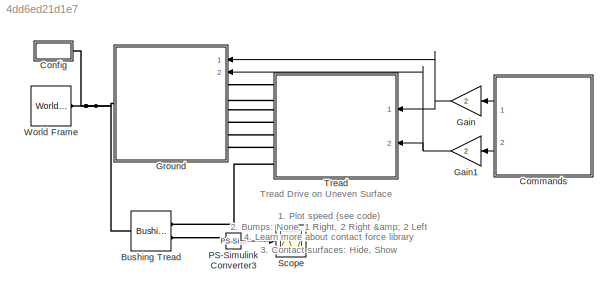
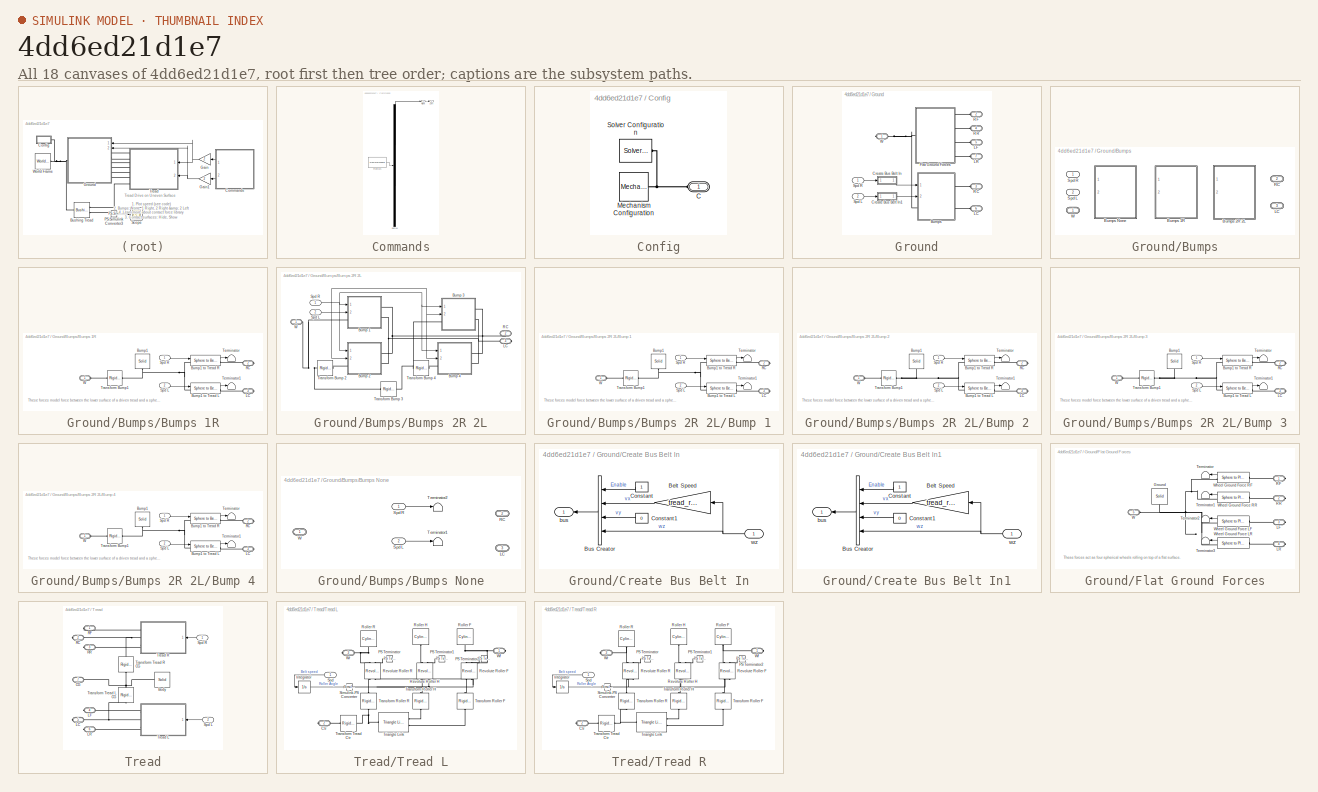
[diagram: thumbnail index - all 18 canvases of the model, root first then tree order]
MODEL slx_4dd6ed21d1e7
KIND model
CONFIG AbsTol = 1e-5
CONFIG EnableMultiTasking = on
CONFIG FixedStep = auto
CONFIG MaxStep = 0.01
CONFIG MinStep = auto
CONFIG PreLoadFcn = sm_tread_drive_param
CONFIG RelTol = 1e-4
CONFIG SampleTimeConstraint = Unconstrained
CONFIG Solver = ode15s
CONFIG SolverName = ode15s
CONFIG StartFcn = tic;
CONFIG StartTime = 0.0
CONFIG StopFcn = Elapsed_Sim_Time = toc;\ndisp(['Elapsed Sim Time = ' num2str(Elapsed_Sim_Time)]);\n
CONFIG StopTime = 50
BLOCK [Reference] Bushing Tread  REF=sm_lib/Joints/Bushing Joint
  Ports = [0, 0, 0, 0, 0, 1, 2]
  SourceBlock = sm_lib/Joints/Bushing Joint
  SourceProductBaseCode = MS
  SourceProductName = Simscape Multibody
  SourceType = Bushing Joint
BLOCK [SubSystem] Commands
  ClipboardFcn = sigbuilder_block('clipboard');
  CloseFcn = sigbuilder_block('close');
  ContinueFcn = sigbuilder_block('continue');
  CopyFcn = sigbuilder_block('copy');
  DeleteFcn = sigbuilder_block('delete');
  LoadFcn = sigbuilder_block('load');
  MaskHideContents = on
  ModelCloseFcn = sigbuilder_block('modelClose');
  NameChangeFcn = sigbuilder_block('namechange');
  OpenFcn = sigbuilder_block('open',[18 313.2 550.8 265.2 ]);
  PauseFcn = sigbuilder_block('pause');
  Ports = [0, 2]
  PreSaveFcn = sigbuilder_block('preSave');
  RequestExecContextInheritance = off
  StartFcn = sigbuilder_block('start');
  StopFcn = sigbuilder_block('stop');
  Tag = STV Subsys
BLOCK [Demux] Commands/Demux
  Outputs = 2
  Ports = [1, 2]
  Tag = STV Demux
BLOCK [FromWorkspace] Commands/FromWs
  SampleTime = 0
  Tag = STV FromWs
  VariableName = tuvar
  ZeroCross = on
BLOCK [Outport] Commands/Left
  IconDisplay = Port number
  Port = 2
  Tag = STV Outport
BLOCK [Outport] Commands/Right
  IconDisplay = Port number
  Tag = STV Outport
BLOCK [SubSystem] Config
  Ports = [0, 0, 0, 0, 0, 1]
  RequestExecContextInheritance = off
BLOCK [PMIOPort] Config/C
  Side = Left
BLOCK [Reference] Config/Mechanism Configuration  REF=sm_lib/Utilities/Mechanism
Configuration
  Ports = [0, 0, 0, 0, 0, 0, 1]
  SourceBlock = sm_lib/Utilities/Mechanism\nConfiguration
  SourceProductBaseCode = MS
  SourceProductName = Simscape Multibody
  SourceType = Mechanism\nConfiguration
BLOCK [Reference] Config/Solver Configuration  REF=nesl_utility/Solver
Configuration
  Ports = [0, 0, 0, 0, 0, 0, 1]
  SourceBlock = nesl_utility/Solver\nConfiguration
  SourceProductBaseCode = SS
  SourceProductName = Simscape
  SourceType = Solver\nConfiguration
BLOCK [Gain] Gain
  Gain = 2
  OutDataTypeStr = Inherit: Inherit via internal rule
  ParamDataTypeStr = Inherit: Inherit via internal rule
  SaturateOnIntegerOverflow = off
BLOCK [Gain] Gain1
  Gain = 2
  OutDataTypeStr = Inherit: Inherit via internal rule
  ParamDataTypeStr = Inherit: Inherit via internal rule
  SaturateOnIntegerOverflow = off
BLOCK [SubSystem] Ground
  AttributesFormatString = %<popup_bumps>
  Ports = [2, 0, 0, 0, 0, 6, 1]
  RequestExecContextInheritance = off
BLOCK [SubSystem] Ground/Bumps
  LabelModeActiveChoice = Bumps_1R
  Ports = [2, 0, 0, 0, 0, 1, 2]
  RequestExecContextInheritance = off
  Variant = on
  VariantControl = Variant1
  VariantControlMode = Label
BLOCK [PMIOPort] Ground/Bumps/ LC
  Port = 3
  Side = Right
BLOCK [PMIOPort] Ground/Bumps/ RC
  Port = 2
  Side = Right
BLOCK [PMIOPort] Ground/Bumps/ W
  Side = Left
BLOCK [SubSystem] Ground/Bumps/Bumps 1R
  Ports = [2, 0, 0, 0, 0, 1, 2]
  RequestExecContextInheritance = off
  VariantControl = Bumps_1R
BLOCK [Reference] Ground/Bumps/Bumps 1R/Bump1  REF=sm_lib/Body Elements/Solid
  Ports = [0, 0, 0, 0, 0, 0, 1]
  SourceBlock = sm_lib/Body Elements/Solid
  SourceProductBaseCode = MS
  SourceProductName = Simscape Multibody
  SourceType = Solid
BLOCK [Reference] Ground/Bumps/Bumps 1R/Bump1 to Tread L  REF=Contact_Forces_Lib/3D/Composite
Forces/Sphere to Belt Force
  Ports = [1, 1, 0, 0, 0, 1, 1]
  SourceBlock = Contact_Forces_Lib/3D/Composite\nForces/Sphere to Belt Force
  SourceProductName = Simscape Multibody Contact Forces Library
  SourceType = Sphere to Belt Force
BLOCK [Reference] Ground/Bumps/Bumps 1R/Bump1 to Tread R  REF=Contact_Forces_Lib/3D/Composite
Forces/Sphere to Belt Force
  Ports = [1, 1, 0, 0, 0, 1, 1]
  SourceBlock = Contact_Forces_Lib/3D/Composite\nForces/Sphere to Belt Force
  SourceProductName = Simscape Multibody Contact Forces Library
  SourceType = Sphere to Belt Force
BLOCK [PMIOPort] Ground/Bumps/Bumps 1R/LC
  Port = 3
  Side = Right
BLOCK [PMIOPort] Ground/Bumps/Bumps 1R/RC
  Port = 2
  Side = Right
BLOCK [Inport] Ground/Bumps/Bumps 1R/Spd L
  IconDisplay = Port number
  Port = 2
BLOCK [Inport] Ground/Bumps/Bumps 1R/Spd R
  IconDisplay = Port number
BLOCK [Terminator] Ground/Bumps/Bumps 1R/Terminator
BLOCK [Terminator] Ground/Bumps/Bumps 1R/Terminator1
BLOCK [Reference] Ground/Bumps/Bumps 1R/Transform Bump1  REF=sm_lib/Frames and
Transforms/Rigid
Transform
  Ports = [0, 0, 0, 0, 0, 1, 1]
  SourceBlock = sm_lib/Frames and\nTransforms/Rigid\nTransform
  SourceProductBaseCode = MS
  SourceProductName = Simscape Multibody
  SourceType = Rigid\nTransform
BLOCK [PMIOPort] Ground/Bumps/Bumps 1R/W
  Side = Left
BLOCK [SubSystem] Ground/Bumps/Bumps 2R 2L
  Ports = [2, 0, 0, 0, 0, 1, 2]
  RequestExecContextInheritance = off
  VariantControl = Bumps_2R_2L
BLOCK [SubSystem] Ground/Bumps/Bumps 2R 2L/Bump 1
  Ports = [2, 0, 0, 0, 0, 1, 2]
  RequestExecContextInheritance = off
BLOCK [Reference] Ground/Bumps/Bumps 2R 2L/Bump 1/Bump1  REF=sm_lib/Body Elements/Solid
  Ports = [0, 0, 0, 0, 0, 0, 1]
  SourceBlock = sm_lib/Body Elements/Solid
  SourceProductBaseCode = MS
  SourceProductName = Simscape Multibody
  SourceType = Solid
BLOCK [Reference] Ground/Bumps/Bumps 2R 2L/Bump 1/Bump1 to Tread L  REF=Contact_Forces_Lib/3D/Composite
Forces/Sphere to Belt Force
  Ports = [1, 1, 0, 0, 0, 1, 1]
  SourceBlock = Contact_Forces_Lib/3D/Composite\nForces/Sphere to Belt Force
  SourceProductName = Simscape Multibody Contact Forces Library
  SourceType = Sphere to Belt Force
BLOCK [Reference] Ground/Bumps/Bumps 2R 2L/Bump 1/Bump1 to Tread R  REF=Contact_Forces_Lib/3D/Composite
Forces/Sphere to Belt Force
  Ports = [1, 1, 0, 0, 0, 1, 1]
  SourceBlock = Contact_Forces_Lib/3D/Composite\nForces/Sphere to Belt Force
  SourceProductName = Simscape Multibody Contact Forces Library
  SourceType = Sphere to Belt Force
BLOCK [PMIOPort] Ground/Bumps/Bumps 2R 2L/Bump 1/LC
  Port = 3
  Side = Right
BLOCK [PMIOPort] Ground/Bumps/Bumps 2R 2L/Bump 1/RC
  Port = 2
  Side = Right
BLOCK [Inport] Ground/Bumps/Bumps 2R 2L/Bump 1/Spd L
  IconDisplay = Port number
  Port = 2
BLOCK [Inport] Ground/Bumps/Bumps 2R 2L/Bump 1/Spd R
  IconDisplay = Port number
BLOCK [Terminator] Ground/Bumps/Bumps 2R 2L/Bump 1/Terminator
BLOCK [Terminator] Ground/Bumps/Bumps 2R 2L/Bump 1/Terminator1
BLOCK [Reference] Ground/Bumps/Bumps 2R 2L/Bump 1/Transform Bump1  REF=sm_lib/Frames and
Transforms/Rigid
Transform
  Ports = [0, 0, 0, 0, 0, 1, 1]
  SourceBlock = sm_lib/Frames and\nTransforms/Rigid\nTransform
  SourceProductBaseCode = MS
  SourceProductName = Simscape Multibody
  SourceType = Rigid\nTransform
BLOCK [PMIOPort] Ground/Bumps/Bumps 2R 2L/Bump 1/W
  Side = Left
BLOCK [SubSystem] Ground/Bumps/Bumps 2R 2L/Bump 2
  Ports = [2, 0, 0, 0, 0, 1, 2]
  RequestExecContextInheritance = off
BLOCK [Reference] Ground/Bumps/Bumps 2R 2L/Bump 2/Bump1  REF=sm_lib/Body Elements/Solid
  Ports = [0, 0, 0, 0, 0, 0, 1]
  SourceBlock = sm_lib/Body Elements/Solid
  SourceProductBaseCode = MS
  SourceProductName = Simscape Multibody
  SourceType = Solid
BLOCK [Reference] Ground/Bumps/Bumps 2R 2L/Bump 2/Bump1 to Tread L  REF=Contact_Forces_Lib/3D/Composite
Forces/Sphere to Belt Force
  Ports = [1, 1, 0, 0, 0, 1, 1]
  SourceBlock = Contact_Forces_Lib/3D/Composite\nForces/Sphere to Belt Force
  SourceProductName = Simscape Multibody Contact Forces Library
  SourceType = Sphere to Belt Force
BLOCK [Reference] Ground/Bumps/Bumps 2R 2L/Bump 2/Bump1 to Tread R  REF=Contact_Forces_Lib/3D/Composite
Forces/Sphere to Belt Force
  Ports = [1, 1, 0, 0, 0, 1, 1]
  SourceBlock = Contact_Forces_Lib/3D/Composite\nForces/Sphere to Belt Force
  SourceProductName = Simscape Multibody Contact Forces Library
  SourceType = Sphere to Belt Force
BLOCK [PMIOPort] Ground/Bumps/Bumps 2R 2L/Bump 2/LC
  Port = 3
  Side = Right
BLOCK [PMIOPort] Ground/Bumps/Bumps 2R 2L/Bump 2/RC
  Port = 2
  Side = Right
BLOCK [Inport] Ground/Bumps/Bumps 2R 2L/Bump 2/Spd L
  IconDisplay = Port number
  Port = 2
BLOCK [Inport] Ground/Bumps/Bumps 2R 2L/Bump 2/Spd R
  IconDisplay = Port number
BLOCK [Terminator] Ground/Bumps/Bumps 2R 2L/Bump 2/Terminator
BLOCK [Terminator] Ground/Bumps/Bumps 2R 2L/Bump 2/Terminator1
BLOCK [Reference] Ground/Bumps/Bumps 2R 2L/Bump 2/Transform Bump1  REF=sm_lib/Frames and
Transforms/Rigid
Transform
  Ports = [0, 0, 0, 0, 0, 1, 1]
  SourceBlock = sm_lib/Frames and\nTransforms/Rigid\nTransform
  SourceProductBaseCode = MS
  SourceProductName = Simscape Multibody
  SourceType = Rigid\nTransform
BLOCK [PMIOPort] Ground/Bumps/Bumps 2R 2L/Bump 2/W
  Side = Left
BLOCK [SubSystem] Ground/Bumps/Bumps 2R 2L/Bump 3
  Ports = [2, 0, 0, 0, 0, 1, 2]
  RequestExecContextInheritance = off
BLOCK [Reference] Ground/Bumps/Bumps 2R 2L/Bump 3/Bump1  REF=sm_lib/Body Elements/Solid
  Ports = [0, 0, 0, 0, 0, 0, 1]
  SourceBlock = sm_lib/Body Elements/Solid
  SourceProductBaseCode = MS
  SourceProductName = Simscape Multibody
  SourceType = Solid
BLOCK [Reference] Ground/Bumps/Bumps 2R 2L/Bump 3/Bump1 to Tread L  REF=Contact_Forces_Lib/3D/Composite
Forces/Sphere to Belt Force
  Ports = [1, 1, 0, 0, 0, 1, 1]
  SourceBlock = Contact_Forces_Lib/3D/Composite\nForces/Sphere to Belt Force
  SourceProductName = Simscape Multibody Contact Forces Library
  SourceType = Sphere to Belt Force
BLOCK [Reference] Ground/Bumps/Bumps 2R 2L/Bump 3/Bump1 to Tread R  REF=Contact_Forces_Lib/3D/Composite
Forces/Sphere to Belt Force
  Ports = [1, 1, 0, 0, 0, 1, 1]
  SourceBlock = Contact_Forces_Lib/3D/Composite\nForces/Sphere to Belt Force
  SourceProductName = Simscape Multibody Contact Forces Library
  SourceType = Sphere to Belt Force
BLOCK [PMIOPort] Ground/Bumps/Bumps 2R 2L/Bump 3/LC
  Port = 3
  Side = Right
BLOCK [PMIOPort] Ground/Bumps/Bumps 2R 2L/Bump 3/RC
  Port = 2
  Side = Right
BLOCK [Inport] Ground/Bumps/Bumps 2R 2L/Bump 3/Spd L
  IconDisplay = Port number
  Port = 2
BLOCK [Inport] Ground/Bumps/Bumps 2R 2L/Bump 3/Spd R
  IconDisplay = Port number
BLOCK [Terminator] Ground/Bumps/Bumps 2R 2L/Bump 3/Terminator
BLOCK [Terminator] Ground/Bumps/Bumps 2R 2L/Bump 3/Terminator1
BLOCK [Reference] Ground/Bumps/Bumps 2R 2L/Bump 3/Transform Bump1  REF=sm_lib/Frames and
Transforms/Rigid
Transform
  Ports = [0, 0, 0, 0, 0, 1, 1]
  SourceBlock = sm_lib/Frames and\nTransforms/Rigid\nTransform
  SourceProductBaseCode = MS
  SourceProductName = Simscape Multibody
  SourceType = Rigid\nTransform
BLOCK [PMIOPort] Ground/Bumps/Bumps 2R 2L/Bump 3/W
  Side = Left
BLOCK [SubSystem] Ground/Bumps/Bumps 2R 2L/Bump 4
  Ports = [2, 0, 0, 0, 0, 1, 2]
  RequestExecContextInheritance = off
BLOCK [Reference] Ground/Bumps/Bumps 2R 2L/Bump 4/Bump1  REF=sm_lib/Body Elements/Solid
  Ports = [0, 0, 0, 0, 0, 0, 1]
  SourceBlock = sm_lib/Body Elements/Solid
  SourceProductBaseCode = MS
  SourceProductName = Simscape Multibody
  SourceType = Solid
BLOCK [Reference] Ground/Bumps/Bumps 2R 2L/Bump 4/Bump1 to Tread L  REF=Contact_Forces_Lib/3D/Composite
Forces/Sphere to Belt Force
  Ports = [1, 1, 0, 0, 0, 1, 1]
  SourceBlock = Contact_Forces_Lib/3D/Composite\nForces/Sphere to Belt Force
  SourceProductName = Simscape Multibody Contact Forces Library
  SourceType = Sphere to Belt Force
BLOCK [Reference] Ground/Bumps/Bumps 2R 2L/Bump 4/Bump1 to Tread R  REF=Contact_Forces_Lib/3D/Composite
Forces/Sphere to Belt Force
  Ports = [1, 1, 0, 0, 0, 1, 1]
  SourceBlock = Contact_Forces_Lib/3D/Composite\nForces/Sphere to Belt Force
  SourceProductName = Simscape Multibody Contact Forces Library
  SourceType = Sphere to Belt Force
BLOCK [PMIOPort] Ground/Bumps/Bumps 2R 2L/Bump 4/LC
  Port = 3
  Side = Right
BLOCK [PMIOPort] Ground/Bumps/Bumps 2R 2L/Bump 4/RC
  Port = 2
  Side = Right
BLOCK [Inport] Ground/Bumps/Bumps 2R 2L/Bump 4/Spd L
  IconDisplay = Port number
  Port = 2
BLOCK [Inport] Ground/Bumps/Bumps 2R 2L/Bump 4/Spd R
  IconDisplay = Port number
BLOCK [Terminator] Ground/Bumps/Bumps 2R 2L/Bump 4/Terminator
BLOCK [Terminator] Ground/Bumps/Bumps 2R 2L/Bump 4/Terminator1
BLOCK [Reference] Ground/Bumps/Bumps 2R 2L/Bump 4/Transform Bump1  REF=sm_lib/Frames and
Transforms/Rigid
Transform
  Ports = [0, 0, 0, 0, 0, 1, 1]
  SourceBlock = sm_lib/Frames and\nTransforms/Rigid\nTransform
  SourceProductBaseCode = MS
  SourceProductName = Simscape Multibody
  SourceType = Rigid\nTransform
BLOCK [PMIOPort] Ground/Bumps/Bumps 2R 2L/Bump 4/W
  Side = Left
BLOCK [PMIOPort] Ground/Bumps/Bumps 2R 2L/LC
  Port = 3
  Side = Right
BLOCK [PMIOPort] Ground/Bumps/Bumps 2R 2L/RC
  Port = 2
  Side = Right
BLOCK [Inport] Ground/Bumps/Bumps 2R 2L/Spd L
  IconDisplay = Port number
  Port = 2
BLOCK [Inport] Ground/Bumps/Bumps 2R 2L/Spd R
  IconDisplay = Port number
BLOCK [Reference] Ground/Bumps/Bumps 2R 2L/Transform Bump 2  REF=sm_lib/Frames and
Transforms/Rigid
Transform
  Ports = [0, 0, 0, 0, 0, 1, 1]
  SourceBlock = sm_lib/Frames and\nTransforms/Rigid\nTransform
  SourceProductBaseCode = MS
  SourceProductName = Simscape Multibody
  SourceType = Rigid\nTransform
BLOCK [Reference] Ground/Bumps/Bumps 2R 2L/Transform Bump 3  REF=sm_lib/Frames and
Transforms/Rigid
Transform
  Ports = [0, 0, 0, 0, 0, 1, 1]
  SourceBlock = sm_lib/Frames and\nTransforms/Rigid\nTransform
  SourceProductBaseCode = MS
  SourceProductName = Simscape Multibody
  SourceType = Rigid\nTransform
BLOCK [Reference] Ground/Bumps/Bumps 2R 2L/Transform Bump 4  REF=sm_lib/Frames and
Transforms/Rigid
Transform
  Ports = [0, 0, 0, 0, 0, 1, 1]
  SourceBlock = sm_lib/Frames and\nTransforms/Rigid\nTransform
  SourceProductBaseCode = MS
  SourceProductName = Simscape Multibody
  SourceType = Rigid\nTransform
BLOCK [PMIOPort] Ground/Bumps/Bumps 2R 2L/W
  Side = Left
BLOCK [SubSystem] Ground/Bumps/Bumps None
  Ports = [2, 0, 0, 0, 0, 1, 2]
  RequestExecContextInheritance = off
  VariantControl = Bumps_None
BLOCK [PMIOPort] Ground/Bumps/Bumps None/LC
  Port = 3
  Side = Right
BLOCK [PMIOPort] Ground/Bumps/Bumps None/RC
  Port = 2
  Side = Right
BLOCK [Inport] Ground/Bumps/Bumps None/Spd L
  IconDisplay = Port number
  Port = 2
BLOCK [Inport] Ground/Bumps/Bumps None/Spd R
  IconDisplay = Port number
BLOCK [Terminator] Ground/Bumps/Bumps None/Terminator1
BLOCK [Terminator] Ground/Bumps/Bumps None/Terminator2
BLOCK [PMIOPort] Ground/Bumps/Bumps None/W
  Side = Left
BLOCK [Inport] Ground/Bumps/Spd L 
  IconDisplay = Port number
  Port = 2
BLOCK [Inport] Ground/Bumps/Spd R 
  IconDisplay = Port number
BLOCK [SubSystem] Ground/Create Bus Belt In
  Ports = [1, 1]
  RequestExecContextInheritance = off
BLOCK [Gain] Ground/Create Bus Belt In/Belt Speed
  Gain = tread_rad
  OutDataTypeStr = Inherit: Inherit via internal rule
  ParamDataTypeStr = Inherit: Inherit via internal rule
  SaturateOnIntegerOverflow = off
BLOCK [BusCreator] Ground/Create Bus Belt In/Bus Creator
  DisplayOption = bar
  InheritFromInputs = on
  Inputs = 4
  Ports = [4, 1]
BLOCK [Constant] Ground/Create Bus Belt In/Constant
BLOCK [Constant] Ground/Create Bus Belt In/Constant1
  Value = 0
BLOCK [Outport] Ground/Create Bus Belt In/bus
  IconDisplay = Port number
BLOCK [Inport] Ground/Create Bus Belt In/wz
  IconDisplay = Port number
BLOCK [SubSystem] Ground/Create Bus Belt In1
  Ports = [1, 1]
  RequestExecContextInheritance = off
BLOCK [Gain] Ground/Create Bus Belt In1/Belt Speed
  Gain = tread_rad
  OutDataTypeStr = Inherit: Inherit via internal rule
  ParamDataTypeStr = Inherit: Inherit via internal rule
  SaturateOnIntegerOverflow = off
BLOCK [BusCreator] Ground/Create Bus Belt In1/Bus Creator
  DisplayOption = bar
  InheritFromInputs = on
  Inputs = 4
  Ports = [4, 1]
BLOCK [Constant] Ground/Create Bus Belt In1/Constant
BLOCK [Constant] Ground/Create Bus Belt In1/Constant1
  Value = 0
BLOCK [Outport] Ground/Create Bus Belt In1/bus
  IconDisplay = Port number
BLOCK [Inport] Ground/Create Bus Belt In1/wz
  IconDisplay = Port number
BLOCK [SubSystem] Ground/Flat Ground Forces
  Ports = [0, 0, 0, 0, 0, 1, 4]
  RequestExecContextInheritance = off
BLOCK [Reference] Ground/Flat Ground Forces/Ground  REF=sm_lib/Body Elements/Solid
  Ports = [0, 0, 0, 0, 0, 0, 1]
  SourceBlock = sm_lib/Body Elements/Solid
  SourceProductBaseCode = MS
  SourceProductName = Simscape Multibody
  SourceType = Solid
BLOCK [PMIOPort] Ground/Flat Ground Forces/LF
  Port = 3
  Side = Right
BLOCK [PMIOPort] Ground/Flat Ground Forces/LR
  Port = 4
  Side = Right
BLOCK [PMIOPort] Ground/Flat Ground Forces/RF
  Side = Right
BLOCK [PMIOPort] Ground/Flat Ground Forces/RR
  Port = 2
  Side = Right
BLOCK [Terminator] Ground/Flat Ground Forces/Terminator
BLOCK [Terminator] Ground/Flat Ground Forces/Terminator1
BLOCK [Terminator] Ground/Flat Ground Forces/Terminator2
BLOCK [Terminator] Ground/Flat Ground Forces/Terminator3
BLOCK [PMIOPort] Ground/Flat Ground Forces/W
  Port = 5
  Side = Left
BLOCK [Reference] Ground/Flat Ground Forces/Wheel Ground Force LF  REF=Contact_Forces_Lib/3D/Sphere to Plane Force
  Ports = [0, 1, 0, 0, 0, 1, 1]
  SourceBlock = Contact_Forces_Lib/3D/Sphere to Plane Force
  SourceProductName = Simscape Multibody Contact Forces Library
  SourceType = Sphere to Plane Force
BLOCK [Reference] Ground/Flat Ground Forces/Wheel Ground Force LR  REF=Contact_Forces_Lib/3D/Sphere to Plane Force
  Ports = [0, 1, 0, 0, 0, 1, 1]
  SourceBlock = Contact_Forces_Lib/3D/Sphere to Plane Force
  SourceProductName = Simscape Multibody Contact Forces Library
  SourceType = Sphere to Plane Force
BLOCK [Reference] Ground/Flat Ground Forces/Wheel Ground Force RF  REF=Contact_Forces_Lib/3D/Sphere to Plane Force
  Ports = [0, 1, 0, 0, 0, 1, 1]
  SourceBlock = Contact_Forces_Lib/3D/Sphere to Plane Force
  SourceProductName = Simscape Multibody Contact Forces Library
  SourceType = Sphere to Plane Force
BLOCK [Reference] Ground/Flat Ground Forces/Wheel Ground Force RR  REF=Contact_Forces_Lib/3D/Sphere to Plane Force
  Ports = [0, 1, 0, 0, 0, 1, 1]
  SourceBlock = Contact_Forces_Lib/3D/Sphere to Plane Force
  SourceProductName = Simscape Multibody Contact Forces Library
  SourceType = Sphere to Plane Force
BLOCK [PMIOPort] Ground/LC
  Port = 6
  Side = Left
BLOCK [PMIOPort] Ground/LF
  Port = 5
  Side = Left
BLOCK [PMIOPort] Ground/LR
  Port = 7
  Side = Left
BLOCK [PMIOPort] Ground/RC
  Port = 3
  Side = Left
BLOCK [PMIOPort] Ground/RF
  Port = 2
  Side = Left
BLOCK [PMIOPort] Ground/RR
  Port = 4
  Side = Left
BLOCK [Inport] Ground/Spd L
  IconDisplay = Port number
  Port = 2
BLOCK [Inport] Ground/Spd R
  IconDisplay = Port number
BLOCK [PMIOPort] Ground/W
  Side = Right
BLOCK [Reference] PS-Simulink Converter3  REF=nesl_utility/PS-Simulink
Converter
  Ports = [0, 1, 0, 0, 0, 1]
  SourceBlock = nesl_utility/PS-Simulink\nConverter
  SourceProductBaseCode = SS
  SourceProductName = Simscape
  SourceType = PS-Simulink\nConverter
BLOCK [Scope] Scope
  Floating = off
  NumInputPorts = 1
  Ports = [1]
  ScopeSpecificationString = Simulink.scopes.TimeScopeBlockCfg('CurrentConfiguration', extmgr.ConfigurationSet(extmgr.Configuration('Core','General UI',true),extmgr.Configuration('Core','Source UI',true),extmgr.Configuration('Sources','WiredSimulink',true,'DataLoggingVariableName','ScopeData5'),extmgr.Configuration('Visuals','Time Domain',true,'SerializedDisplays',{struct('MinYLimReal','-0.78809','MaxYLimReal','0.83753','YLab...<+1392ch>
BLOCK [SubSystem] Tread
  Ports = [2, 0, 0, 0, 0, 0, 7]
  RequestExecContextInheritance = off
BLOCK [Reference] Tread/Body  REF=sm_lib/Body Elements/Solid
  Ports = [0, 0, 0, 0, 0, 1]
  SourceBlock = sm_lib/Body Elements/Solid
  SourceProductBaseCode = MS
  SourceProductName = Simscape Multibody
  SourceType = Solid
BLOCK [PMIOPort] Tread/CG
  Port = 7
  Side = Right
BLOCK [PMIOPort] Tread/LC
  Port = 5
  Side = Right
BLOCK [PMIOPort] Tread/LF
  Port = 4
  Side = Right
BLOCK [PMIOPort] Tread/LR
  Port = 6
  Side = Right
BLOCK [PMIOPort] Tread/RC
  Port = 2
  Side = Right
BLOCK [PMIOPort] Tread/RF
  Side = Right
BLOCK [PMIOPort] Tread/RR
  Port = 3
  Side = Right
BLOCK [Inport] Tread/Spd L
  IconDisplay = Port number
  Port = 2
BLOCK [Inport] Tread/Spd R
  IconDisplay = Port number
BLOCK [Reference] Tread/Transform Tread L CG  REF=sm_lib/Frames and
Transforms/Rigid
Transform
  Ports = [0, 0, 0, 0, 0, 1, 1]
  SourceBlock = sm_lib/Frames and\nTransforms/Rigid\nTransform
  SourceProductBaseCode = MS
  SourceProductName = Simscape Multibody
  SourceType = Rigid\nTransform
BLOCK [Reference] Tread/Transform Tread R CG  REF=sm_lib/Frames and
Transforms/Rigid
Transform
  Ports = [0, 0, 0, 0, 0, 1, 1]
  SourceBlock = sm_lib/Frames and\nTransforms/Rigid\nTransform
  SourceProductBaseCode = MS
  SourceProductName = Simscape Multibody
  SourceType = Rigid\nTransform
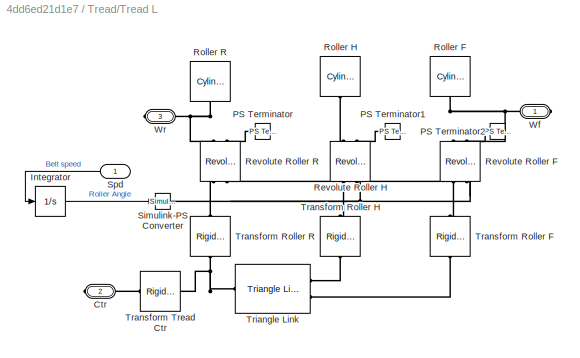
BLOCK [SubSystem] Tread/Tread L
  Ports = [1, 0, 0, 0, 0, 0, 3]
  RequestExecContextInheritance = off
BLOCK [PMIOPort] Tread/Tread L/Ctr
  Port = 2
  Side = Right
BLOCK [Integrator] Tread/Tread L/Integrator
  Ports = [1, 1]
BLOCK [Reference] Tread/Tread L/PS Terminator  REF=fl_lib/Physical Signals/Sinks/PS Terminator
  Ports = [0, 0, 0, 0, 0, 1]
  SourceBlock = fl_lib/Physical Signals/Sinks/PS Terminator
  SourceProductBaseCode = SS
  SourceProductName = Simscape
  SourceType = PS Terminator
BLOCK [Reference] Tread/Tread L/PS Terminator1  REF=fl_lib/Physical Signals/Sinks/PS Terminator
  Ports = [0, 0, 0, 0, 0, 1]
  SourceBlock = fl_lib/Physical Signals/Sinks/PS Terminator
  SourceProductBaseCode = SS
  SourceProductName = Simscape
  SourceType = PS Terminator
BLOCK [Reference] Tread/Tread L/PS Terminator2  REF=fl_lib/Physical Signals/Sinks/PS Terminator
  Ports = [0, 0, 0, 0, 0, 1]
  SourceBlock = fl_lib/Physical Signals/Sinks/PS Terminator
  SourceProductBaseCode = SS
  SourceProductName = Simscape
  SourceType = PS Terminator
BLOCK [Reference] Tread/Tread L/Revolute Roller F  REF=sm_lib/Joints/Revolute Joint
  Ports = [0, 0, 0, 0, 0, 2, 2]
  SourceBlock = sm_lib/Joints/Revolute Joint
  SourceProductBaseCode = MS
  SourceProductName = Simscape Multibody
  SourceType = Revolute Joint
BLOCK [Reference] Tread/Tread L/Revolute Roller H  REF=sm_lib/Joints/Revolute Joint
  Ports = [0, 0, 0, 0, 0, 2, 2]
  SourceBlock = sm_lib/Joints/Revolute Joint
  SourceProductBaseCode = MS
  SourceProductName = Simscape Multibody
  SourceType = Revolute Joint
BLOCK [Reference] Tread/Tread L/Revolute Roller R  REF=sm_lib/Joints/Revolute Joint
  Ports = [0, 0, 0, 0, 0, 2, 2]
  SourceBlock = sm_lib/Joints/Revolute Joint
  SourceProductBaseCode = MS
  SourceProductName = Simscape Multibody
  SourceType = Revolute Joint
BLOCK [Reference] Tread/Tread L/Roller F  REF=Parts_Lib/Cylinder
  Ports = [0, 0, 0, 0, 0, 1]
  SourceBlock = Parts_Lib/Cylinder
  SourceType = Solid Cylinder with Markings
  Tag = CustomStyle
BLOCK [Reference] Tread/Tread L/Roller H  REF=Parts_Lib/Cylinder
  Ports = [0, 0, 0, 0, 0, 1]
  SourceBlock = Parts_Lib/Cylinder
  SourceType = Solid Cylinder with Markings
  Tag = CustomStyle
BLOCK [Reference] Tread/Tread L/Roller R  REF=Parts_Lib/Cylinder
  Ports = [0, 0, 0, 0, 0, 1]
  SourceBlock = Parts_Lib/Cylinder
  SourceType = Solid Cylinder with Markings
  Tag = CustomStyle
BLOCK [Reference] Tread/Tread L/Simulink-PS Converter  REF=nesl_utility/Simulink-PS
Converter
  Ports = [1, 0, 0, 0, 0, 0, 1]
  SourceBlock = nesl_utility/Simulink-PS\nConverter
  SourceProductBaseCode = SS
  SourceProductName = Simscape
  SourceType = Simulink-PS\nConverter
BLOCK [Inport] Tread/Tread L/Spd
  IconDisplay = Port number
BLOCK [Reference] Tread/Tread L/Transform Roller F  REF=sm_lib/Frames and
Transforms/Rigid
Transform
  Ports = [0, 0, 0, 0, 0, 1, 1]
  SourceBlock = sm_lib/Frames and\nTransforms/Rigid\nTransform
  SourceProductBaseCode = MS
  SourceProductName = Simscape Multibody
  SourceType = Rigid\nTransform
BLOCK [Reference] Tread/Tread L/Transform Roller H  REF=sm_lib/Frames and
Transforms/Rigid
Transform
  Ports = [0, 0, 0, 0, 0, 1, 1]
  SourceBlock = sm_lib/Frames and\nTransforms/Rigid\nTransform
  SourceProductBaseCode = MS
  SourceProductName = Simscape Multibody
  SourceType = Rigid\nTransform
BLOCK [Reference] Tread/Tread L/Transform Roller R  REF=sm_lib/Frames and
Transforms/Rigid
Transform
  Ports = [0, 0, 0, 0, 0, 1, 1]
  SourceBlock = sm_lib/Frames and\nTransforms/Rigid\nTransform
  SourceProductBaseCode = MS
  SourceProductName = Simscape Multibody
  SourceType = Rigid\nTransform
BLOCK [Reference] Tread/Tread L/Transform Tread Ctr  REF=sm_lib/Frames and
Transforms/Rigid
Transform
  Ports = [0, 0, 0, 0, 0, 1, 1]
  SourceBlock = sm_lib/Frames and\nTransforms/Rigid\nTransform
  SourceProductBaseCode = MS
  SourceProductName = Simscape Multibody
  SourceType = Rigid\nTransform
BLOCK [Reference] Tread/Tread L/Triangle Link  REF=Parts_Lib/Triangle Link
  Ports = [0, 0, 0, 0, 0, 1, 2]
  SourceBlock = Parts_Lib/Triangle Link
  SourceType = Triangular Link with Rounded Corners
BLOCK [PMIOPort] Tread/Tread L/Wf
  Side = Right
BLOCK [PMIOPort] Tread/Tread L/Wr
  Port = 3
  Side = Right
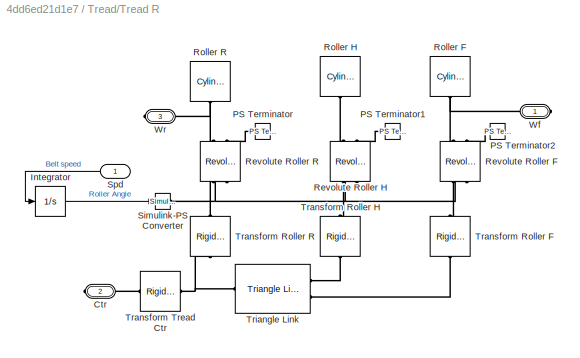
BLOCK [SubSystem] Tread/Tread R
  Ports = [1, 0, 0, 0, 0, 0, 3]
  RequestExecContextInheritance = off
BLOCK [PMIOPort] Tread/Tread R/Ctr
  Port = 2
  Side = Right
BLOCK [Integrator] Tread/Tread R/Integrator
  Ports = [1, 1]
BLOCK [Reference] Tread/Tread R/PS Terminator  REF=fl_lib/Physical Signals/Sinks/PS Terminator
  Ports = [0, 0, 0, 0, 0, 1]
  SourceBlock = fl_lib/Physical Signals/Sinks/PS Terminator
  SourceProductBaseCode = SS
  SourceProductName = Simscape
  SourceType = PS Terminator
BLOCK [Reference] Tread/Tread R/PS Terminator1  REF=fl_lib/Physical Signals/Sinks/PS Terminator
  Ports = [0, 0, 0, 0, 0, 1]
  SourceBlock = fl_lib/Physical Signals/Sinks/PS Terminator
  SourceProductBaseCode = SS
  SourceProductName = Simscape
  SourceType = PS Terminator
BLOCK [Reference] Tread/Tread R/PS Terminator2  REF=fl_lib/Physical Signals/Sinks/PS Terminator
  Ports = [0, 0, 0, 0, 0, 1]
  SourceBlock = fl_lib/Physical Signals/Sinks/PS Terminator
  SourceProductBaseCode = SS
  SourceProductName = Simscape
  SourceType = PS Terminator
BLOCK [Reference] Tread/Tread R/Revolute Roller F  REF=sm_lib/Joints/Revolute Joint
  Ports = [0, 0, 0, 0, 0, 2, 2]
  SourceBlock = sm_lib/Joints/Revolute Joint
  SourceProductBaseCode = MS
  SourceProductName = Simscape Multibody
  SourceType = Revolute Joint
BLOCK [Reference] Tread/Tread R/Revolute Roller H  REF=sm_lib/Joints/Revolute Joint
  Ports = [0, 0, 0, 0, 0, 2, 2]
  SourceBlock = sm_lib/Joints/Revolute Joint
  SourceProductBaseCode = MS
  SourceProductName = Simscape Multibody
  SourceType = Revolute Joint
BLOCK [Reference] Tread/Tread R/Revolute Roller R  REF=sm_lib/Joints/Revolute Joint
  Ports = [0, 0, 0, 0, 0, 2, 2]
  SourceBlock = sm_lib/Joints/Revolute Joint
  SourceProductBaseCode = MS
  SourceProductName = Simscape Multibody
  SourceType = Revolute Joint
BLOCK [Reference] Tread/Tread R/Roller F  REF=Parts_Lib/Cylinder
  Ports = [0, 0, 0, 0, 0, 1]
  SourceBlock = Parts_Lib/Cylinder
  SourceType = Solid Cylinder with Markings
  Tag = CustomStyle
BLOCK [Reference] Tread/Tread R/Roller H  REF=Parts_Lib/Cylinder
  Ports = [0, 0, 0, 0, 0, 1]
  SourceBlock = Parts_Lib/Cylinder
  SourceType = Solid Cylinder with Markings
  Tag = CustomStyle
BLOCK [Reference] Tread/Tread R/Roller R  REF=Parts_Lib/Cylinder
  Ports = [0, 0, 0, 0, 0, 1]
  SourceBlock = Parts_Lib/Cylinder
  SourceType = Solid Cylinder with Markings
  Tag = CustomStyle
BLOCK [Reference] Tread/Tread R/Simulink-PS Converter  REF=nesl_utility/Simulink-PS
Converter
  Ports = [1, 0, 0, 0, 0, 0, 1]
  SourceBlock = nesl_utility/Simulink-PS\nConverter
  SourceProductBaseCode = SS
  SourceProductName = Simscape
  SourceType = Simulink-PS\nConverter
BLOCK [Inport] Tread/Tread R/Spd
  IconDisplay = Port number
BLOCK [Reference] Tread/Tread R/Transform Roller F  REF=sm_lib/Frames and
Transforms/Rigid
Transform
  Ports = [0, 0, 0, 0, 0, 1, 1]
  SourceBlock = sm_lib/Frames and\nTransforms/Rigid\nTransform
  SourceProductBaseCode = MS
  SourceProductName = Simscape Multibody
  SourceType = Rigid\nTransform
BLOCK [Reference] Tread/Tread R/Transform Roller H  REF=sm_lib/Frames and
Transforms/Rigid
Transform
  Ports = [0, 0, 0, 0, 0, 1, 1]
  SourceBlock = sm_lib/Frames and\nTransforms/Rigid\nTransform
  SourceProductBaseCode = MS
  SourceProductName = Simscape Multibody
  SourceType = Rigid\nTransform
BLOCK [Reference] Tread/Tread R/Transform Roller R  REF=sm_lib/Frames and
Transforms/Rigid
Transform
  Ports = [0, 0, 0, 0, 0, 1, 1]
  SourceBlock = sm_lib/Frames and\nTransforms/Rigid\nTransform
  SourceProductBaseCode = MS
  SourceProductName = Simscape Multibody
  SourceType = Rigid\nTransform
BLOCK [Reference] Tread/Tread R/Transform Tread Ctr  REF=sm_lib/Frames and
Transforms/Rigid
Transform
  Ports = [0, 0, 0, 0, 0, 1, 1]
  SourceBlock = sm_lib/Frames and\nTransforms/Rigid\nTransform
  SourceProductBaseCode = MS
  SourceProductName = Simscape Multibody
  SourceType = Rigid\nTransform
BLOCK [Reference] Tread/Tread R/Triangle Link  REF=Parts_Lib/Triangle Link
  Ports = [0, 0, 0, 0, 0, 1, 2]
  SourceBlock = Parts_Lib/Triangle Link
  SourceType = Triangular Link with Rounded Corners
BLOCK [PMIOPort] Tread/Tread R/Wf
  Side = Right
BLOCK [PMIOPort] Tread/Tread R/Wr
  Port = 3
  Side = Right
BLOCK [Reference] World Frame  REF=sm_lib/Frames and
Transforms/World Frame
  Ports = [0, 0, 0, 0, 0, 0, 1]
  SourceBlock = sm_lib/Frames and\nTransforms/World Frame
  SourceProductBaseCode = MS
  SourceProductName = Simscape Multibody
  SourceType = World Frame
ANNOTATION (root): 1. Plot speed ( see code ) 2. Bumps: None , 1 Right , 2 Right & 2 Left 3. Contact surfaces: Hide , Show 4. Learn more about contact force library
ANNOTATION (root): Tread Drive on Uneven Surface
ANNOTATION Ground/Bumps/Bumps 1R: These forces model force between the lower surface of a driven tread and a spherical bump.
ANNOTATION Ground/Bumps/Bumps 2R 2L/Bump 1: These forces model force between the lower surface of a driven tread and a spherical bump.
ANNOTATION Ground/Bumps/Bumps 2R 2L/Bump 2: These forces model force between the lower surface of a driven tread and a spherical bump.
ANNOTATION Ground/Bumps/Bumps 2R 2L/Bump 3: These forces model force between the lower surface of a driven tread and a spherical bump.
ANNOTATION Ground/Bumps/Bumps 2R 2L/Bump 4: These forces model force between the lower surface of a driven tread and a spherical bump.
ANNOTATION Ground/Flat Ground Forces: These forces act as four spherical wheels rolling on top of a flat surface.
LINE Commands:1 -> Gain:1
LINE Commands:2 -> Gain1:1
NET Gain1:1 -> Ground:2, Tread:2
NET Gain:1 -> Ground:1, Tread:1
LINE Ground/Bumps/Bumps 1R/Bump1 to Tread L:1 -> Ground/Bumps/Bumps 1R/Terminator1:1
LINE Ground/Bumps/Bumps 1R/Bump1 to Tread R:1 -> Ground/Bumps/Bumps 1R/Terminator:1
LINE Ground/Bumps/Bumps 1R/Spd L:1 -> Ground/Bumps/Bumps 1R/Bump1 to Tread L:1
LINE Ground/Bumps/Bumps 1R/Spd R:1 -> Ground/Bumps/Bumps 1R/Bump1 to Tread R:1
LINE Ground/Bumps/Bumps 2R 2L/Bump 1/Bump1 to Tread L:1 -> Ground/Bumps/Bumps 2R 2L/Bump 1/Terminator1:1
LINE Ground/Bumps/Bumps 2R 2L/Bump 1/Bump1 to Tread R:1 -> Ground/Bumps/Bumps 2R 2L/Bump 1/Terminator:1
LINE Ground/Bumps/Bumps 2R 2L/Bump 1/Spd L:1 -> Ground/Bumps/Bumps 2R 2L/Bump 1/Bump1 to Tread L:1
LINE Ground/Bumps/Bumps 2R 2L/Bump 1/Spd R:1 -> Ground/Bumps/Bumps 2R 2L/Bump 1/Bump1 to Tread R:1
LINE Ground/Bumps/Bumps 2R 2L/Bump 2/Bump1 to Tread L:1 -> Ground/Bumps/Bumps 2R 2L/Bump 2/Terminator1:1
LINE Ground/Bumps/Bumps 2R 2L/Bump 2/Bump1 to Tread R:1 -> Ground/Bumps/Bumps 2R 2L/Bump 2/Terminator:1
LINE Ground/Bumps/Bumps 2R 2L/Bump 2/Spd L:1 -> Ground/Bumps/Bumps 2R 2L/Bump 2/Bump1 to Tread L:1
LINE Ground/Bumps/Bumps 2R 2L/Bump 2/Spd R:1 -> Ground/Bumps/Bumps 2R 2L/Bump 2/Bump1 to Tread R:1
LINE Ground/Bumps/Bumps 2R 2L/Bump 3/Bump1 to Tread L:1 -> Ground/Bumps/Bumps 2R 2L/Bump 3/Terminator1:1
LINE Ground/Bumps/Bumps 2R 2L/Bump 3/Bump1 to Tread R:1 -> Ground/Bumps/Bumps 2R 2L/Bump 3/Terminator:1
LINE Ground/Bumps/Bumps 2R 2L/Bump 3/Spd L:1 -> Ground/Bumps/Bumps 2R 2L/Bump 3/Bump1 to Tread L:1
LINE Ground/Bumps/Bumps 2R 2L/Bump 3/Spd R:1 -> Ground/Bumps/Bumps 2R 2L/Bump 3/Bump1 to Tread R:1
LINE Ground/Bumps/Bumps 2R 2L/Bump 4/Bump1 to Tread L:1 -> Ground/Bumps/Bumps 2R 2L/Bump 4/Terminator1:1
LINE Ground/Bumps/Bumps 2R 2L/Bump 4/Bump1 to Tread R:1 -> Ground/Bumps/Bumps 2R 2L/Bump 4/Terminator:1
LINE Ground/Bumps/Bumps 2R 2L/Bump 4/Spd L:1 -> Ground/Bumps/Bumps 2R 2L/Bump 4/Bump1 to Tread L:1
LINE Ground/Bumps/Bumps 2R 2L/Bump 4/Spd R:1 -> Ground/Bumps/Bumps 2R 2L/Bump 4/Bump1 to Tread R:1
NET Ground/Bumps/Bumps 2R 2L/Spd L:1 -> Ground/Bumps/Bumps 2R 2L/Bump 1:2, Ground/Bumps/Bumps 2R 2L/Bump 2:2, Ground/Bumps/Bumps 2R 2L/Bump 3:2, Ground/Bumps/Bumps 2R 2L/Bump 4:2
NET Ground/Bumps/Bumps 2R 2L/Spd R:1 -> Ground/Bumps/Bumps 2R 2L/Bump 1:1, Ground/Bumps/Bumps 2R 2L/Bump 2:1, Ground/Bumps/Bumps 2R 2L/Bump 3:1, Ground/Bumps/Bumps 2R 2L/Bump 4:1
LINE Ground/Bumps/Bumps None/Spd L:1 -> Ground/Bumps/Bumps None/Terminator1:1
LINE Ground/Bumps/Bumps None/Spd R:1 -> Ground/Bumps/Bumps None/Terminator2:1
LINE Ground/Create Bus Belt In/Belt Speed:1 -> Ground/Create Bus Belt In/Bus Creator:2
LINE Ground/Create Bus Belt In/Bus Creator:1 -> Ground/Create Bus Belt In/bus:1
LINE Ground/Create Bus Belt In/Constant1:1 -> Ground/Create Bus Belt In/Bus Creator:3
LINE Ground/Create Bus Belt In/Constant:1 -> Ground/Create Bus Belt In/Bus Creator:1
NET Ground/Create Bus Belt In/wz:1 -> Ground/Create Bus Belt In/Belt Speed:1, Ground/Create Bus Belt In/Bus Creator:4
LINE Ground/Create Bus Belt In1/Belt Speed:1 -> Ground/Create Bus Belt In1/Bus Creator:2
LINE Ground/Create Bus Belt In1/Bus Creator:1 -> Ground/Create Bus Belt In1/bus:1
LINE Ground/Create Bus Belt In1/Constant1:1 -> Ground/Create Bus Belt In1/Bus Creator:3
LINE Ground/Create Bus Belt In1/Constant:1 -> Ground/Create Bus Belt In1/Bus Creator:1
NET Ground/Create Bus Belt In1/wz:1 -> Ground/Create Bus Belt In1/Belt Speed:1, Ground/Create Bus Belt In1/Bus Creator:4
LINE Ground/Create Bus Belt In1:1 -> Ground/Bumps:2
LINE Ground/Create Bus Belt In:1 -> Ground/Bumps:1
LINE Ground/Flat Ground Forces/Wheel Ground Force LF:1 -> Ground/Flat Ground Forces/Terminator2:1
LINE Ground/Flat Ground Forces/Wheel Ground Force LR:1 -> Ground/Flat Ground Forces/Terminator3:1
LINE Ground/Flat Ground Forces/Wheel Ground Force RF:1 -> Ground/Flat Ground Forces/Terminator:1
LINE Ground/Flat Ground Forces/Wheel Ground Force RR:1 -> Ground/Flat Ground Forces/Terminator1:1
LINE Ground/Spd L:1 -> Ground/Create Bus Belt In1:1
LINE Ground/Spd R:1 -> Ground/Create Bus Belt In:1
LINE PS-Simulink Converter3:1 -> Scope:1
LINE Tread/Spd L:1 -> Tread/Tread L:1
LINE Tread/Spd R:1 -> Tread/Tread R:1
LINE Tread/Tread L/Integrator:1 -> Tread/Tread L/Simulink-PS Converter:1
LINE Tread/Tread L/Spd:1 -> Tread/Tread L/Integrator:1
LINE Tread/Tread R/Integrator:1 -> Tread/Tread R/Simulink-PS Converter:1
LINE Tread/Tread R/Spd:1 -> Tread/Tread R/Integrator:1
PNET net1: Bushing Tread:LConn1 -- Config:LConn1 -- Ground:RConn1 -- World Frame:RConn1
PLINE Bushing Tread:RConn1 -- Tread:RConn7
PLINE Bushing Tread:RConn2 -- PS-Simulink Converter3:LConn1
PNET net2: Config/C:RConn1 -- Config/Mechanism Configuration:RConn1 -- Config/Solver Configuration:RConn1
PNET net3: Ground/Bumps/Bumps 1R/Bump1 to Tread L:LConn1 -- Ground/Bumps/Bumps 1R/Bump1 to Tread R:LConn1 -- Ground/Bumps/Bumps 1R/Bump1:RConn1 -- Ground/Bumps/Bumps 1R/Transform Bump1:RConn1
PLINE Ground/Bumps/Bumps 1R/Bump1 to Tread L:RConn1 -- Ground/Bumps/Bumps 1R/LC:RConn1
PLINE Ground/Bumps/Bumps 1R/Bump1 to Tread R:RConn1 -- Ground/Bumps/Bumps 1R/RC:RConn1
PLINE Ground/Bumps/Bumps 1R/Transform Bump1:LConn1 -- Ground/Bumps/Bumps 1R/W:RConn1
PNET net4: Ground/Bumps/Bumps 2R 2L/Bump 1/Bump1 to Tread L:LConn1 -- Ground/Bumps/Bumps 2R 2L/Bump 1/Bump1 to Tread R:LConn1 -- Ground/Bumps/Bumps 2R 2L/Bump 1/Bump1:RConn1 -- Ground/Bumps/Bumps 2R 2L/Bump 1/Transform Bump1:RConn1
PLINE Ground/Bumps/Bumps 2R 2L/Bump 1/Bump1 to Tread L:RConn1 -- Ground/Bumps/Bumps 2R 2L/Bump 1/LC:RConn1
PLINE Ground/Bumps/Bumps 2R 2L/Bump 1/Bump1 to Tread R:RConn1 -- Ground/Bumps/Bumps 2R 2L/Bump 1/RC:RConn1
PLINE Ground/Bumps/Bumps 2R 2L/Bump 1/Transform Bump1:LConn1 -- Ground/Bumps/Bumps 2R 2L/Bump 1/W:RConn1
PNET net5: Ground/Bumps/Bumps 2R 2L/Bump 1:LConn1 -- Ground/Bumps/Bumps 2R 2L/Transform Bump 2:LConn1 -- Ground/Bumps/Bumps 2R 2L/Transform Bump 3:LConn1 -- Ground/Bumps/Bumps 2R 2L/W:RConn1
PNET net6: Ground/Bumps/Bumps 2R 2L/Bump 1:RConn1 -- Ground/Bumps/Bumps 2R 2L/Bump 2:RConn1 -- Ground/Bumps/Bumps 2R 2L/Bump 3:RConn1 -- Ground/Bumps/Bumps 2R 2L/Bump 4:RConn1 -- Ground/Bumps/Bumps 2R 2L/RC:RConn1
PNET net7: Ground/Bumps/Bumps 2R 2L/Bump 1:RConn2 -- Ground/Bumps/Bumps 2R 2L/Bump 2:RConn2 -- Ground/Bumps/Bumps 2R 2L/Bump 3:RConn2 -- Ground/Bumps/Bumps 2R 2L/Bump 4:RConn2 -- Ground/Bumps/Bumps 2R 2L/LC:RConn1
PNET net8: Ground/Bumps/Bumps 2R 2L/Bump 2/Bump1 to Tread L:LConn1 -- Ground/Bumps/Bumps 2R 2L/Bump 2/Bump1 to Tread R:LConn1 -- Ground/Bumps/Bumps 2R 2L/Bump 2/Bump1:RConn1 -- Ground/Bumps/Bumps 2R 2L/Bump 2/Transform Bump1:RConn1
PLINE Ground/Bumps/Bumps 2R 2L/Bump 2/Bump1 to Tread L:RConn1 -- Ground/Bumps/Bumps 2R 2L/Bump 2/LC:RConn1
PLINE Ground/Bumps/Bumps 2R 2L/Bump 2/Bump1 to Tread R:RConn1 -- Ground/Bumps/Bumps 2R 2L/Bump 2/RC:RConn1
PLINE Ground/Bumps/Bumps 2R 2L/Bump 2/Transform Bump1:LConn1 -- Ground/Bumps/Bumps 2R 2L/Bump 2/W:RConn1
PLINE Ground/Bumps/Bumps 2R 2L/Bump 2:LConn1 -- Ground/Bumps/Bumps 2R 2L/Transform Bump 2:RConn1
PNET net9: Ground/Bumps/Bumps 2R 2L/Bump 3/Bump1 to Tread L:LConn1 -- Ground/Bumps/Bumps 2R 2L/Bump 3/Bump1 to Tread R:LConn1 -- Ground/Bumps/Bumps 2R 2L/Bump 3/Bump1:RConn1 -- Ground/Bumps/Bumps 2R 2L/Bump 3/Transform Bump1:RConn1
PLINE Ground/Bumps/Bumps 2R 2L/Bump 3/Bump1 to Tread L:RConn1 -- Ground/Bumps/Bumps 2R 2L/Bump 3/LC:RConn1
PLINE Ground/Bumps/Bumps 2R 2L/Bump 3/Bump1 to Tread R:RConn1 -- Ground/Bumps/Bumps 2R 2L/Bump 3/RC:RConn1
PLINE Ground/Bumps/Bumps 2R 2L/Bump 3/Transform Bump1:LConn1 -- Ground/Bumps/Bumps 2R 2L/Bump 3/W:RConn1
PNET net10: Ground/Bumps/Bumps 2R 2L/Bump 3:LConn1 -- Ground/Bumps/Bumps 2R 2L/Transform Bump 3:RConn1 -- Ground/Bumps/Bumps 2R 2L/Transform Bump 4:LConn1
PNET net11: Ground/Bumps/Bumps 2R 2L/Bump 4/Bump1 to Tread L:LConn1 -- Ground/Bumps/Bumps 2R 2L/Bump 4/Bump1 to Tread R:LConn1 -- Ground/Bumps/Bumps 2R 2L/Bump 4/Bump1:RConn1 -- Ground/Bumps/Bumps 2R 2L/Bump 4/Transform Bump1:RConn1
PLINE Ground/Bumps/Bumps 2R 2L/Bump 4/Bump1 to Tread L:RConn1 -- Ground/Bumps/Bumps 2R 2L/Bump 4/LC:RConn1
PLINE Ground/Bumps/Bumps 2R 2L/Bump 4/Bump1 to Tread R:RConn1 -- Ground/Bumps/Bumps 2R 2L/Bump 4/RC:RConn1
PLINE Ground/Bumps/Bumps 2R 2L/Bump 4/Transform Bump1:LConn1 -- Ground/Bumps/Bumps 2R 2L/Bump 4/W:RConn1
PLINE Ground/Bumps/Bumps 2R 2L/Bump 4:LConn1 -- Ground/Bumps/Bumps 2R 2L/Transform Bump 4:RConn1
PNET net12: Ground/Bumps:LConn1 -- Ground/Flat Ground Forces:LConn1 -- Ground/W:RConn1
PLINE Ground/Bumps:RConn1 -- Ground/RC:RConn1
PLINE Ground/Bumps:RConn2 -- Ground/LC:RConn1
PNET net13: Ground/Flat Ground Forces/Ground:RConn1 -- Ground/Flat Ground Forces/W:RConn1 -- Ground/Flat Ground Forces/Wheel Ground Force LF:RConn1 -- Ground/Flat Ground Forces/Wheel Ground Force LR:RConn1 -- Ground/Flat Ground Forces/Wheel Ground Force RF:RConn1 -- Ground/Flat Ground Forces/Wheel Ground Force RR:RConn1
PLINE Ground/Flat Ground Forces/LF:RConn1 -- Ground/Flat Ground Forces/Wheel Ground Force LF:LConn1
PLINE Ground/Flat Ground Forces/LR:RConn1 -- Ground/Flat Ground Forces/Wheel Ground Force LR:LConn1
PLINE Ground/Flat Ground Forces/RF:RConn1 -- Ground/Flat Ground Forces/Wheel Ground Force RF:LConn1
PLINE Ground/Flat Ground Forces/RR:RConn1 -- Ground/Flat Ground Forces/Wheel Ground Force RR:LConn1
PLINE Ground/Flat Ground Forces:RConn1 -- Ground/RF:RConn1
PLINE Ground/Flat Ground Forces:RConn2 -- Ground/RR:RConn1
PLINE Ground/Flat Ground Forces:RConn3 -- Ground/LF:RConn1
PLINE Ground/Flat Ground Forces:RConn4 -- Ground/LR:RConn1
PLINE Ground:LConn1 -- Tread:RConn1
PLINE Ground:LConn2 -- Tread:RConn2
PLINE Ground:LConn3 -- Tread:RConn3
PLINE Ground:LConn4 -- Tread:RConn4
PLINE Ground:LConn5 -- Tread:RConn5
PLINE Ground:LConn6 -- Tread:RConn6
PNET net14: Tread/Body:LConn1 -- Tread/CG:RConn1 -- Tread/Transform Tread L CG:LConn1 -- Tread/Transform Tread R CG:RConn1
PNET net15: Tread/LC:RConn1 -- Tread/Transform Tread L CG:RConn1 -- Tread/Tread L:RConn2
PLINE Tread/LF:RConn1 -- Tread/Tread L:RConn1
PLINE Tread/LR:RConn1 -- Tread/Tread L:RConn3
PNET net16: Tread/RC:RConn1 -- Tread/Transform Tread R CG:LConn1 -- Tread/Tread R:RConn2
PLINE Tread/RF:RConn1 -- Tread/Tread R:RConn1
PLINE Tread/RR:RConn1 -- Tread/Tread R:RConn3
PLINE Tread/Tread L/Ctr:RConn1 -- Tread/Tread L/Transform Tread Ctr:RConn1
PLINE Tread/Tread L/PS Terminator1:LConn1 -- Tread/Tread L/Revolute Roller H:RConn2
PLINE Tread/Tread L/PS Terminator2:LConn1 -- Tread/Tread L/Revolute Roller F:RConn2
PLINE Tread/Tread L/PS Terminator:LConn1 -- Tread/Tread L/Revolute Roller R:RConn2
PLINE Tread/Tread L/Revolute Roller F:LConn1 -- Tread/Tread L/Transform Roller F:RConn1
PNET net17: Tread/Tread L/Revolute Roller F:LConn2 -- Tread/Tread L/Revolute Roller H:LConn2 -- Tread/Tread L/Revolute Roller R:LConn2 -- Tread/Tread L/Simulink-PS Converter:RConn1
PNET net18: Tread/Tread L/Revolute Roller F:RConn1 -- Tread/Tread L/Roller F:LConn1 -- Tread/Tread L/Wf:RConn1
PLINE Tread/Tread L/Revolute Roller H:LConn1 -- Tread/Tread L/Transform Roller H:RConn1
PLINE Tread/Tread L/Revolute Roller H:RConn1 -- Tread/Tread L/Roller H:LConn1
PLINE Tread/Tread L/Revolute Roller R:LConn1 -- Tread/Tread L/Transform Roller R:RConn1
PNET net19: Tread/Tread L/Revolute Roller R:RConn1 -- Tread/Tread L/Roller R:LConn1 -- Tread/Tread L/Wr:RConn1
PLINE Tread/Tread L/Transform Roller F:LConn1 -- Tread/Tread L/Triangle Link:RConn2
PLINE Tread/Tread L/Transform Roller H:LConn1 -- Tread/Tread L/Triangle Link:RConn1
PNET net20: Tread/Tread L/Transform Roller R:LConn1 -- Tread/Tread L/Transform Tread Ctr:LConn1 -- Tread/Tread L/Triangle Link:LConn1
PLINE Tread/Tread R/Ctr:RConn1 -- Tread/Tread R/Transform Tread Ctr:RConn1
PLINE Tread/Tread R/PS Terminator1:LConn1 -- Tread/Tread R/Revolute Roller H:RConn2
PLINE Tread/Tread R/PS Terminator2:LConn1 -- Tread/Tread R/Revolute Roller F:RConn2
PLINE Tread/Tread R/PS Terminator:LConn1 -- Tread/Tread R/Revolute Roller R:RConn2
PLINE Tread/Tread R/Revolute Roller F:LConn1 -- Tread/Tread R/Transform Roller F:RConn1
PNET net21: Tread/Tread R/Revolute Roller F:LConn2 -- Tread/Tread R/Revolute Roller H:LConn2 -- Tread/Tread R/Revolute Roller R:LConn2 -- Tread/Tread R/Simulink-PS Converter:RConn1
PNET net22: Tread/Tread R/Revolute Roller F:RConn1 -- Tread/Tread R/Roller F:LConn1 -- Tread/Tread R/Wf:RConn1
PLINE Tread/Tread R/Revolute Roller H:LConn1 -- Tread/Tread R/Transform Roller H:RConn1
PLINE Tread/Tread R/Revolute Roller H:RConn1 -- Tread/Tread R/Roller H:LConn1
PLINE Tread/Tread R/Revolute Roller R:LConn1 -- Tread/Tread R/Transform Roller R:RConn1
PNET net23: Tread/Tread R/Revolute Roller R:RConn1 -- Tread/Tread R/Roller R:LConn1 -- Tread/Tread R/Wr:RConn1
PLINE Tread/Tread R/Transform Roller F:LConn1 -- Tread/Tread R/Triangle Link:RConn2
PLINE Tread/Tread R/Transform Roller H:LConn1 -- Tread/Tread R/Triangle Link:RConn1
PNET net24: Tread/Tread R/Transform Roller R:LConn1 -- Tread/Tread R/Transform Tread Ctr:LConn1 -- Tread/Tread R/Triangle Link:LConn1
note: NET lines group one-source signal fan-out (src -> all destinations, sorted); 1:1 wires keep LINE; PNET lines group multi-terminal physical nets as a canonical sorted terminal list (undirected conserving connections); 2-terminal nets keep the pairwise PLINE form
